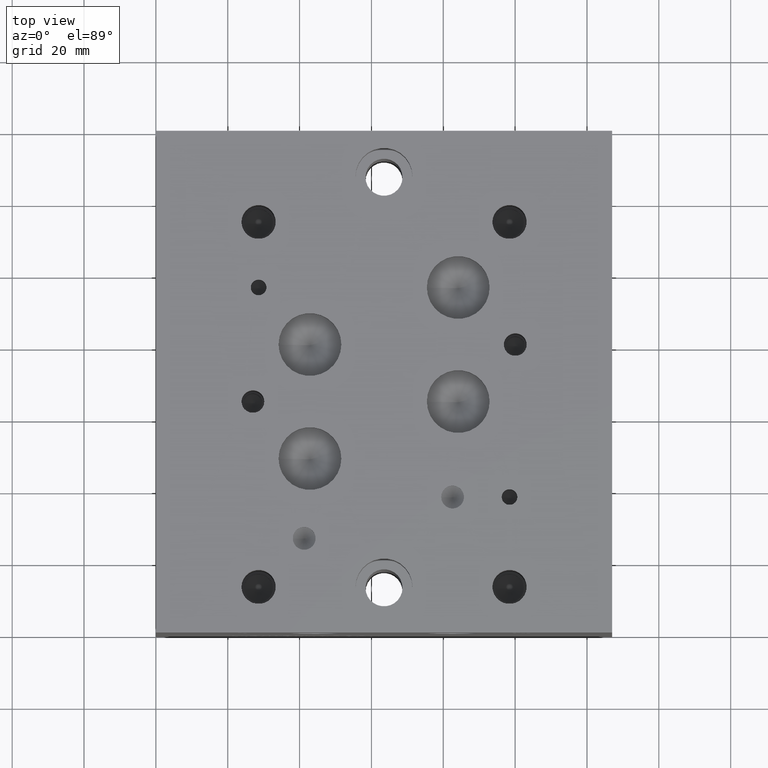
[diagram: clean part render]
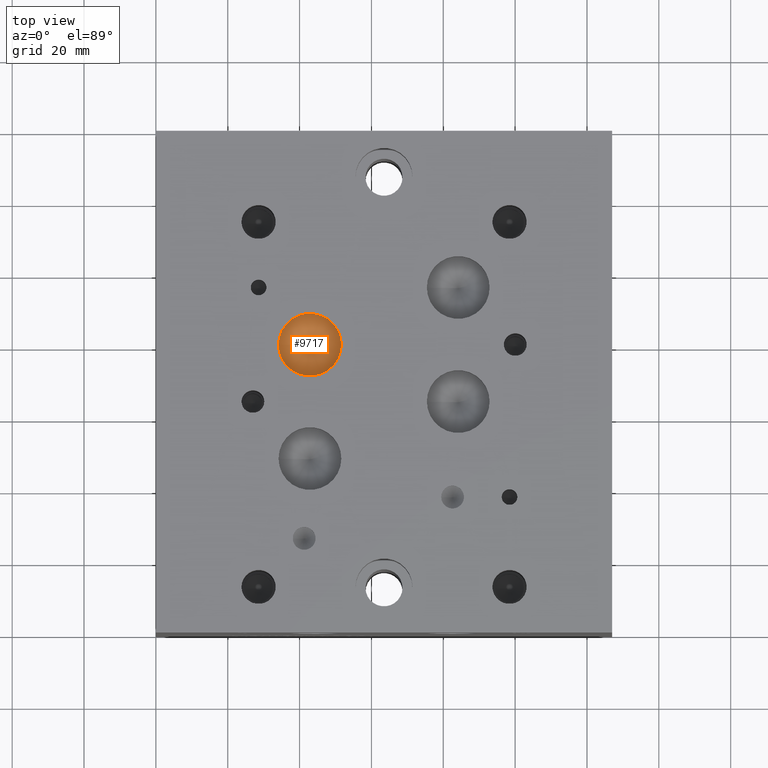
[diagram: same view with one face highlighted and labeled with its STEP entity id]
A machine part, top view. The second image highlights one B-rep face of the part: STEP entity #9717.
In plain terms, the highlighted conical surface has half-angle 60 deg.
Its self-contained STEP definition (entity closure, byte-faithful):
#58=CONICAL_SURFACE('',#10156,4.3688,1.0471975511966);
#132=CIRCLE('',#10157,8.7376);
#133=CIRCLE('',#10158,8.7376);
#1035=FACE_OUTER_BOUND('',#1583,.T.);
#1583=EDGE_LOOP('',(#8498,#8499,#8500,#8501));
#2561=LINE('',#16443,#3505);
#3505=VECTOR('',#11948,4.3688);
#4639=VERTEX_POINT('',#16439);
#4640=VERTEX_POINT('',#16440);
#4641=VERTEX_POINT('',#16442);
#5955=EDGE_CURVE('',#4639,#4640,#132,.T.);
#5956=EDGE_CURVE('',#4640,#4641,#2561,.T.);
#5957=EDGE_CURVE('',#4640,#4639,#133,.T.);
#8498=ORIENTED_EDGE('',*,*,#5955,.T.);
#8499=ORIENTED_EDGE('',*,*,#5956,.T.);
#8500=ORIENTED_EDGE('',*,*,#5956,.F.);
#8501=ORIENTED_EDGE('',*,*,#5957,.T.);
#9717=ADVANCED_FACE('',(#1035),#58,.F.);
#10156=AXIS2_PLACEMENT_3D('',#16438,#11944,#11945);
#10157=AXIS2_PLACEMENT_3D('',#16441,#11946,#11947);
#10158=AXIS2_PLACEMENT_3D('',#16444,#11949,#11950);
#11944=DIRECTION('center_axis',(0.,0.,1.));
#11945=DIRECTION('ref_axis',(1.,0.,0.));
#11946=DIRECTION('center_axis',(0.,0.,1.));
#11947=DIRECTION('ref_axis',(1.,0.,0.));
#11948=DIRECTION('',(0.866025403784439,1.06057523872491E-16,-0.5));
#11949=DIRECTION('center_axis',(0.,0.,1.));
#11950=DIRECTION('ref_axis',(1.,0.,0.));
#16438=CARTESIAN_POINT('Origin',(42.8752,80.1624,68.6330121439644));
#16439=CARTESIAN_POINT('',(51.6128,80.1624,71.15534));
#16440=CARTESIAN_POINT('',(34.1376,80.1624,71.15534));
#16441=CARTESIAN_POINT('Origin',(42.8752,80.1624,71.15534));
#16442=CARTESIAN_POINT('',(42.8752,80.1624,66.1106842879287));
#16443=CARTESIAN_POINT('',(38.5064,80.1624,68.6330121439644));
#16444=CARTESIAN_POINT('Origin',(42.8752,80.1624,71.15534));